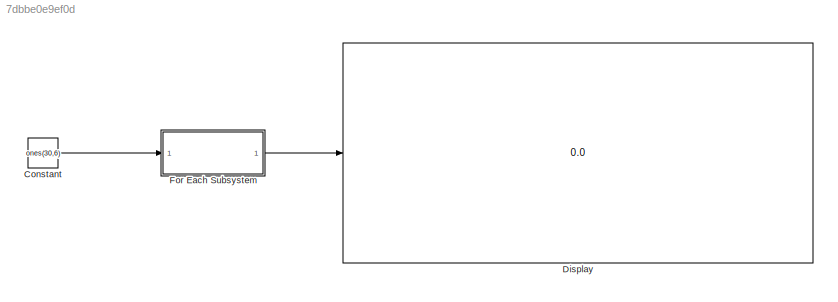
MODEL slx_7dbbe0e9ef0d
KIND model
CONFIG AbsTol = auto
CONFIG EnableMultiTasking = off
CONFIG FixedStep = 0.01
CONFIG MaxStep = auto
CONFIG MinStep = auto
CONFIG RelTol = 1e-3
CONFIG SampleTimeConstraint = Unconstrained
CONFIG SolverName = FixedStepDiscrete
CONFIG StartTime = 4067.8601
CONFIG StopTime = 4107.8798
BLOCK [Constant] Constant
  Value = ones(30,6)
BLOCK [Display] Display
  Decimation = 1
  Ports = [1]
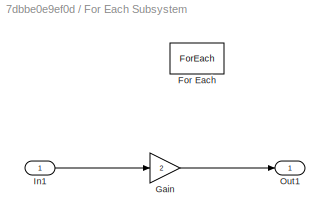
BLOCK [SubSystem] For Each Subsystem
  Ports = [1, 1]
  RequestExecContextInheritance = off
  TreatAsAtomicUnit = on
BLOCK [ForEach] For Each Subsystem/For Each
  DisableCoverage = on
  Ports = []
BLOCK [Gain] For Each Subsystem/Gain
  Gain = 2
BLOCK [Inport] For Each Subsystem/In1
  Partition = on
  PartitionDimension = 2
  PartitionOffset = 0
  PartitionWidth = 2
BLOCK [Outport] For Each Subsystem/Out1
  ConcatenationDimension = 2
LINE Constant:1 -> For Each Subsystem:1
LINE For Each Subsystem/Gain:1 -> For Each Subsystem/Out1:1
LINE For Each Subsystem/In1:1 -> For Each Subsystem/Gain:1
LINE For Each Subsystem:1 -> Display:1
